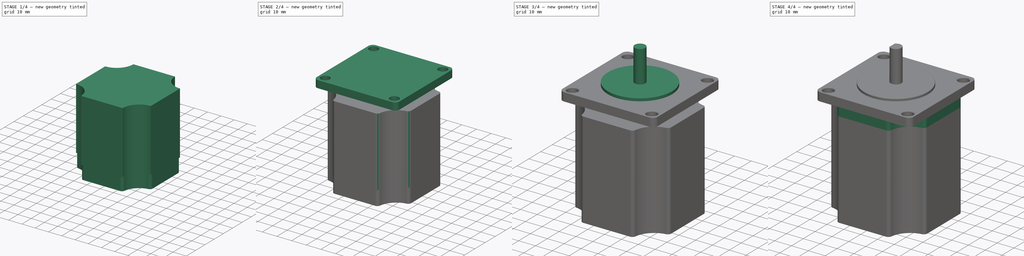
[diagram: build sequence overview — one tinted view per stage of 4, left to right]
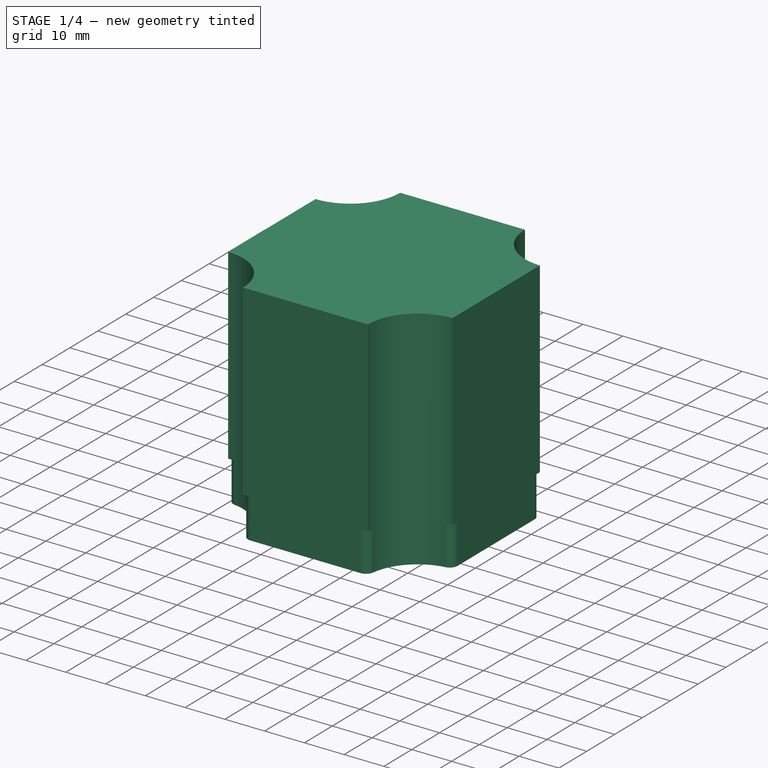
[diagram: stage 1 of 4 — iso view after this stage's code; geometry added in this stage tinted green]
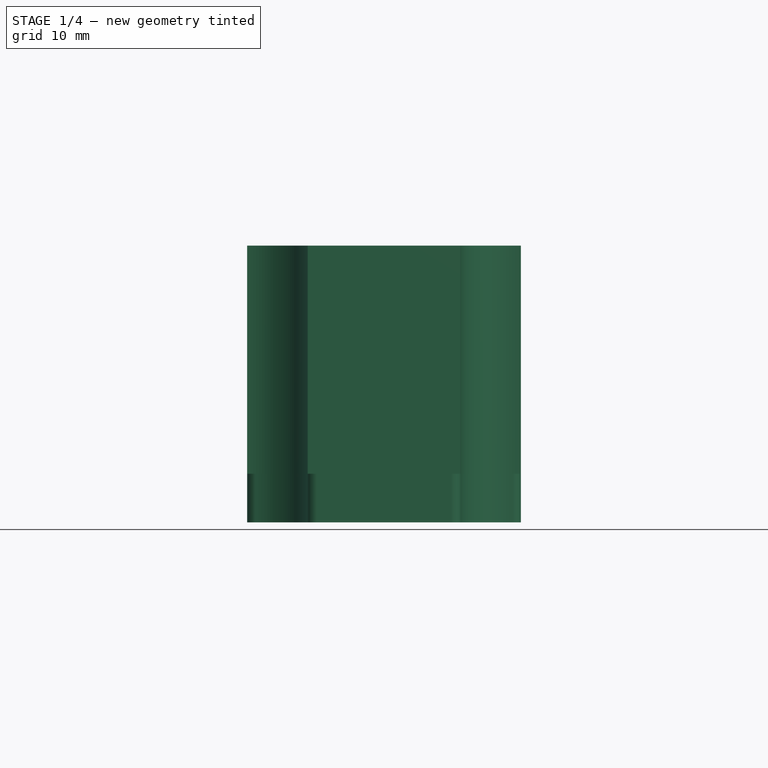
[diagram: stage 1 of 4 — front view after this stage's code; geometry added in this stage tinted green]
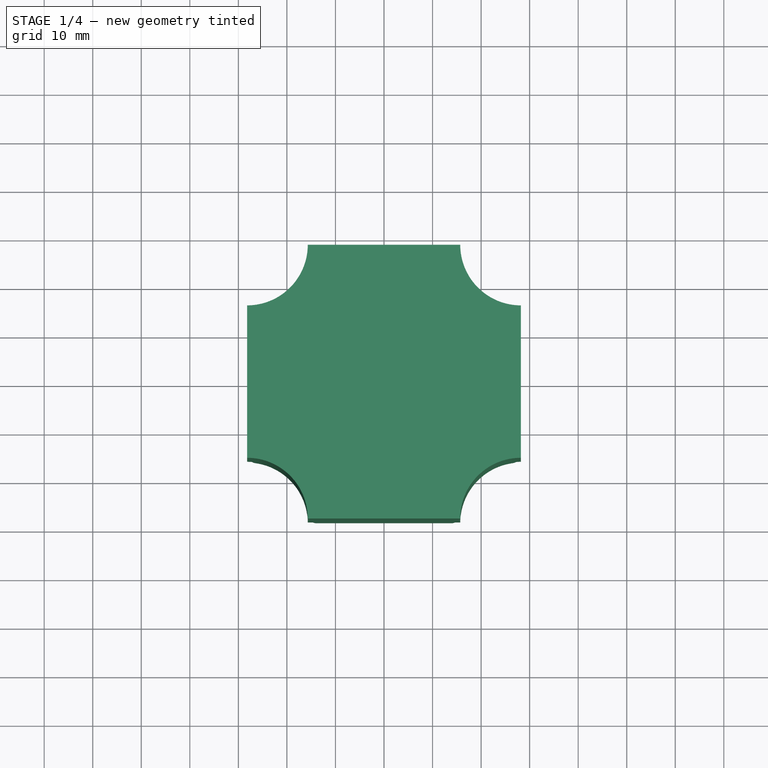
[diagram: stage 1 of 4 — top view after this stage's code; geometry added in this stage tinted green]
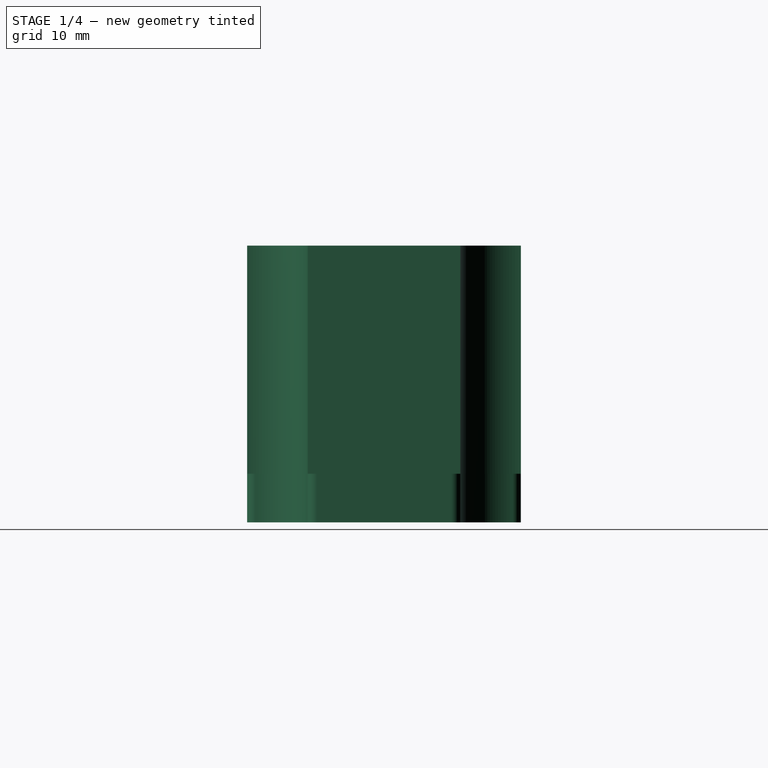
[diagram: stage 1 of 4 — right view after this stage's code; geometry added in this stage tinted green]
FCSTD DOCUMENT  (FreeCAD 1.0R39319 (Git))
Label: Nema23-Motor
License: All rights reserved
LicenseURL: http://en.wikipedia.org/wiki/All_rights_reserved
objects: Sketcher::SketchObject×7, PartDesign::Pad×6, PartDesign::Fillet×4, PartDesign::Body×3, PartDesign::Chamfer×1, PartDesign::Pocket×1
note: 53 computed .brp shape members not serialized (recipe doc carries the construction recipe); baked Part::Feature solids carry a one-line shape summary decoded from their .brp

FEATURE [PartDesign::Body] Body
  AllowCompound = false
  Group = -> [Sketch,Pad,Fillet,Chamfer,Sketch001,Pad001,Sketch002,Pad002,Sketch003,Pocket,Sketch004,Pad003,Fillet002]
  Origin = -> Origin
  Tip = -> Fillet002
FEATURE [Sketcher::SketchObject] Sketch005
  ArcFitTolerance = 0
  FullyConstrained = true
  MakeInternals = false
  MapMode = 5
  Placement = pos=(0,0,-5) rot=(1,0,0;3.14159rad)
  sketch-geometry (8):
    g0: LineSegment StartX=-28.2 StartY=15.7 StartZ=0 EndX=-28.2 EndY=-15.7 EndZ=0
    g1: LineSegment StartX=28.2 StartY=15.7 StartZ=0 EndX=28.2 EndY=-15.7 EndZ=0
    g2: LineSegment StartX=-15.7 StartY=28.2 StartZ=0 EndX=15.7 EndY=28.2 EndZ=0
    g3: LineSegment StartX=-15.7 StartY=-28.2 StartZ=0 EndX=15.7 EndY=-28.2 EndZ=0
    g4: ArcOfCircle CenterX=-28.2 CenterY=28.2 CenterZ=0 NormalX=0 NormalY=0 NormalZ=1 AngleXU=0 Radius=12.5 StartAngle=4.71239 EndAngle=6.28319
    g5: ArcOfCircle CenterX=28.2 CenterY=28.2 CenterZ=0 NormalX=0 NormalY=0 NormalZ=1 AngleXU=0 Radius=12.5 StartAngle=3.14159 EndAngle=4.71239
    g6: ArcOfCircle CenterX=28.2 CenterY=-28.2 CenterZ=0 NormalX=0 NormalY=0 NormalZ=1 AngleXU=0 Radius=12.5 StartAngle=1.5708 EndAngle=3.14159
    g7: ArcOfCircle CenterX=-28.2 CenterY=-28.2 CenterZ=0 NormalX=0 NormalY=0 NormalZ=1 AngleXU=0 Radius=12.5 StartAngle=1e-16 EndAngle=1.5708
  constraints (24):
    c: Symmetric(g0,g0,g-1)
    c: Vertical(g1)
    c: Horizontal(g3)
    c: Symmetric(g0,g1,g-2)
    c: Symmetric(g2,g2,g-2)
    c: Symmetric(g3,g2,g-1)
    c: Vertical(g3,g2)
    c: Horizontal(g1,g0)
    c: Coincident(g4,g2)
    c: Coincident(g4,g0)
    c: Coincident(g5,g2)
    c: Coincident(g5,g1)
    c: Coincident(g6,g1)
    c: Coincident(g6,g3)
    c: Coincident(g7,g0)
    c: Coincident(g7,g3)
    c: Vertical(g7,g0)
    c: Horizontal(g7,g3)
    c: Equal(g4,g7)
    c: Equal(g7,g5)
    c: Equal(g5,g6)
    c: DistanceX(g0,g1) = 56.4
    c: DistanceY(g3,g2) = 56.4
    c: Radius(g5) = 12.5
FEATURE [PartDesign::Pad] Pad004
  AllowMultiFace = false
  Direction = (0,-1e-16,-1)
  Length = 47
  Length2 = 100
  Placement = pos=(0,0,-5) rot=(1,0,0;3.14159rad)
  Profile = -> Sketch005
  Suppressed = false
  Type = 0
FEATURE [PartDesign::Body] Body001
  AllowCompound = false
  Group = -> [Sketch005,Pad004,Fillet003]
  Origin = -> Origin001
  Tip = -> Fillet003
FEATURE [Sketcher::SketchObject] Sketch006
  ArcFitTolerance = 0
  FullyConstrained = true
  MakeInternals = false
  MapMode = 5
  Placement = pos=(0,6e-15,-52) rot=(1,0,0;3.14159rad)
  sketch-geometry (8):
    g0: LineSegment StartX=-28.2 StartY=15.7 StartZ=0 EndX=-28.2 EndY=-15.7 EndZ=0
    g1: LineSegment StartX=-15.7 StartY=28.2 StartZ=0 EndX=15.7 EndY=28.2 EndZ=0
    g2: LineSegment StartX=28.2 StartY=15.7 StartZ=0 EndX=28.2 EndY=-15.7 EndZ=0
    g3: LineSegment StartX=-15.7 StartY=-28.2 StartZ=0 EndX=15.7 EndY=-28.2 EndZ=0
    g4: ArcOfCircle CenterX=28.2 CenterY=28.2 CenterZ=0 NormalX=0 NormalY=0 NormalZ=1 AngleXU=0 Radius=12.5 StartAngle=3.14159 EndAngle=4.71239
    g5: ArcOfCircle CenterX=28.2 CenterY=-28.2 CenterZ=0 NormalX=0 NormalY=0 NormalZ=1 AngleXU=0 Radius=12.5 StartAngle=1.5708 EndAngle=3.14159
    g6: ArcOfCircle CenterX=-28.2 CenterY=-28.2 CenterZ=0 NormalX=0 NormalY=0 NormalZ=1 AngleXU=0 Radius=12.5 StartAngle=0 EndAngle=1.5708
    g7: ArcOfCircle CenterX=-28.2 CenterY=28.2 CenterZ=0 NormalX=0 NormalY=0 NormalZ=1 AngleXU=0 Radius=12.5 StartAngle=4.71239 EndAngle=6.28319
  constraints (25):
    c: Vertical(g0)
    c: Horizontal(g1)
    c: Vertical(g2)
    c: Horizontal(g3)
    c: Coincident(g4,g2)
    c: Coincident(g5,g2)
    c: Coincident(g5,g3)
    c: Coincident(g6,g0)
    c: Coincident(g6,g3)
    c: Coincident(g7,g1)
    c: Coincident(g7,g0)
    c: Equal(g7,g4)
    c: Equal(g4,g5)
    c: Equal(g5,g6)
    c: Symmetric(g7,g4,g-2)
    c: Symmetric(g6,g5,g-2)
    c: Symmetric(g6,g7,g-1)
    c: Coincident(g1,g4)
    c: Radius(g7) = 12.5
    c: DistanceX(g7,g4) = 56.4
    c: DistanceY(g5,g4) = 56.4
    c: Vertical(g4,g2)
    c: Horizontal(g1,g4)
    c: Vertical(g0,g7)
    c: Horizontal(g3,g6)
FEATURE [PartDesign::Pad] Pad005
  AllowMultiFace = false
  Direction = (0,-1e-16,-1)
  Length = 10
  Length2 = 100
  Placement = pos=(0,6e-15,-52) rot=(1,0,0;3.14159rad)
  Profile = -> Sketch006
  Suppressed = false
  Type = 0
FEATURE [PartDesign::Fillet] Fillet004
  Base = -> Pad005 [Edge17,Edge20,Edge1,Edge14,Edge11,Edge8,Edge5,Edge2]
  BaseFeature = -> Pad005
  Placement = pos=(0,6e-15,-52) rot=(1,0,0;3.14159rad)
  Radius = 2
  Refine = true
  SupportTransform = false
  Suppressed = false
  UseAllEdges = false
FEATURE [PartDesign::Body] Body002
  AllowCompound = false
  Group = -> [Sketch006,Pad005,Fillet004]
  Origin = -> Origin002
  Tip = -> Fillet004
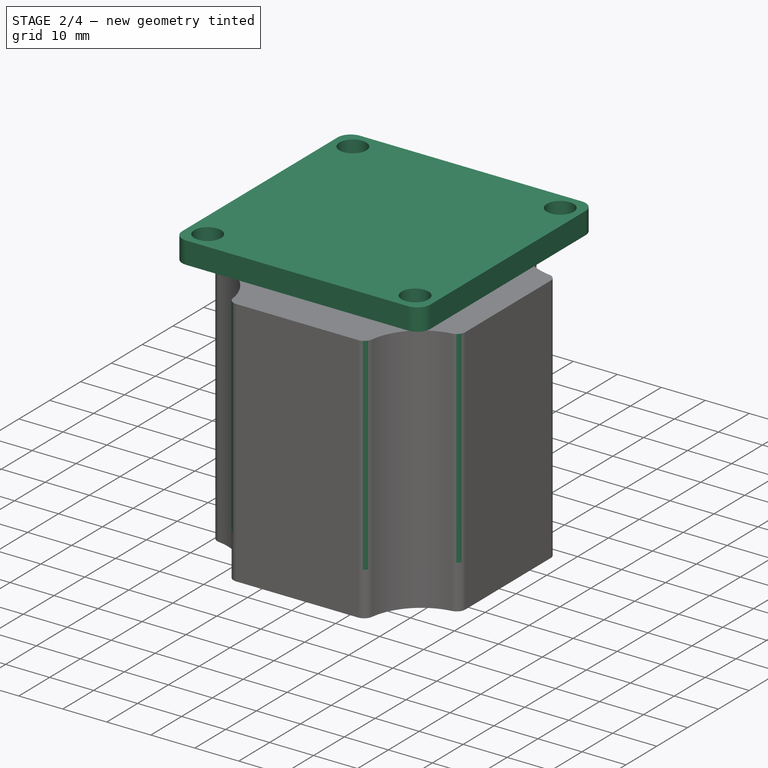
[diagram: stage 2 of 4 — iso view after this stage's code; geometry added in this stage tinted green]
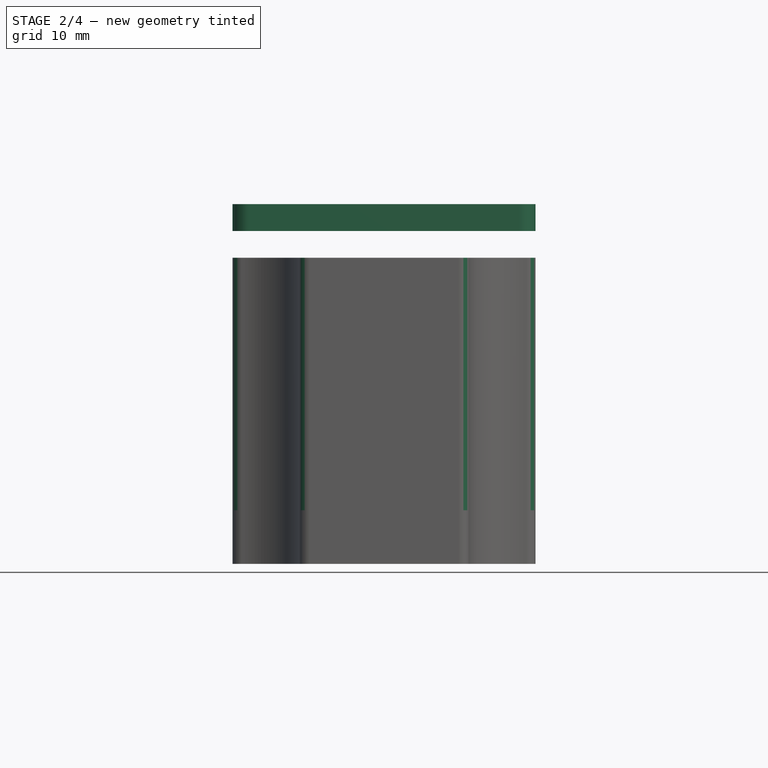
[diagram: stage 2 of 4 — front view after this stage's code; geometry added in this stage tinted green]
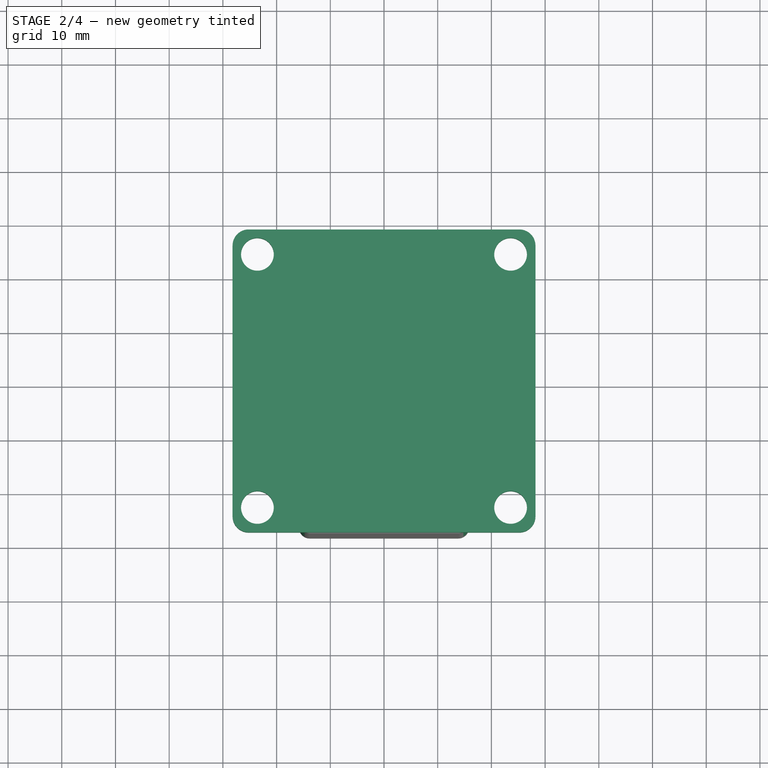
[diagram: stage 2 of 4 — top view after this stage's code; geometry added in this stage tinted green]
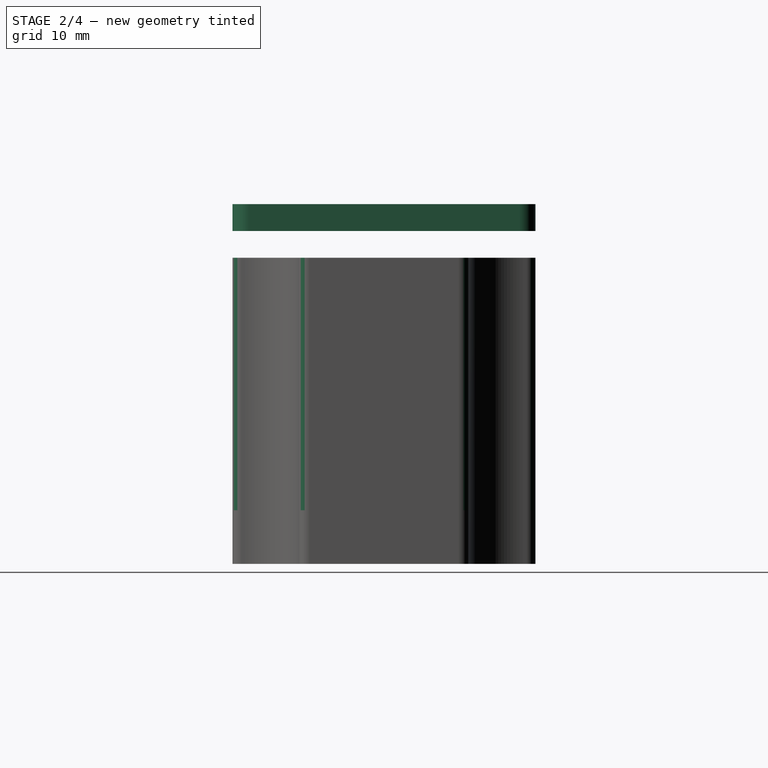
[diagram: stage 2 of 4 — right view after this stage's code; geometry added in this stage tinted green]
FEATURE [Sketcher::SketchObject] Sketch
  ArcFitTolerance = 0
  AttachmentSupport = -> [XY_Plane]
  FullyConstrained = true
  MakeInternals = false
  MapMode = 5
  sketch-geometry (8):
    g0: LineSegment StartX=-28.2 StartY=28.2 StartZ=0 EndX=28.2 EndY=28.2 EndZ=0
    g1: LineSegment StartX=28.2 StartY=28.2 StartZ=0 EndX=28.2 EndY=-28.2 EndZ=0
    g2: LineSegment StartX=28.2 StartY=-28.2 StartZ=0 EndX=-28.2 EndY=-28.2 EndZ=0
    g3: LineSegment StartX=-28.2 StartY=-28.2 StartZ=0 EndX=-28.2 EndY=28.2 EndZ=0
    g4: Circle CenterX=-23.57 CenterY=23.57 CenterZ=0 NormalX=0 NormalY=0 NormalZ=1 AngleXU=0 Radius=3.05
    g5: Circle CenterX=23.57 CenterY=23.57 CenterZ=0 NormalX=0 NormalY=0 NormalZ=1 AngleXU=0 Radius=3.05
    g6: Circle CenterX=23.57 CenterY=-23.57 CenterZ=0 NormalX=0 NormalY=0 NormalZ=1 AngleXU=0 Radius=3.05
    g7: Circle CenterX=-23.57 CenterY=-23.57 CenterZ=0 NormalX=0 NormalY=0 NormalZ=1 AngleXU=0 Radius=3.05
  constraints (21):
    c: Coincident(g0,g1)
    c: Coincident(g1,g2)
    c: Coincident(g2,g3)
    c: Coincident(g3,g0)
    c: Horizontal(g0)
    c: Horizontal(g2)
    c: Vertical(g1)
    c: Vertical(g3)
    c: Symmetric(g0,g1,g-1)
    c: DistanceX(g0,g0) = 56.4
    c: DistanceY(g1,g1) = 56.4
    c: Symmetric(g4,g5,g-2)
    c: Symmetric(g5,g6,g-1)
    c: Vertical(g7,g4)
    c: Horizontal(g7,g6)
    c: Equal(g4,g5)
    c: Equal(g5,g6)
    c: Equal(g6,g7)
    c: Diameter(g5) = 6.1
    c: DistanceX(g4,g5) = 47.14
    c: DistanceY(g6,g5) = 47.14
FEATURE [PartDesign::Pad] Pad
  AllowMultiFace = false
  Direction = (0,0,1)
  Length = 5
  Length2 = 100
  Profile = -> Sketch
  Suppressed = false
  Type = 0
FEATURE [PartDesign::Fillet] Fillet
  Base = -> Pad [Edge2,Edge1,Edge8,Edge5]
  BaseFeature = -> Pad
  Radius = 3
  Refine = true
  SupportTransform = false
  Suppressed = false
  UseAllEdges = false
FEATURE [PartDesign::Fillet] Fillet003
  Base = -> Pad004 [Edge1,Edge5,Edge8,Edge11,Edge14,Edge17,Edge20,Edge2]
  BaseFeature = -> Pad004
  Placement = pos=(0,0,-5) rot=(1,0,0;3.14159rad)
  Radius = 2
  Refine = true
  SupportTransform = false
  Suppressed = false
  UseAllEdges = false
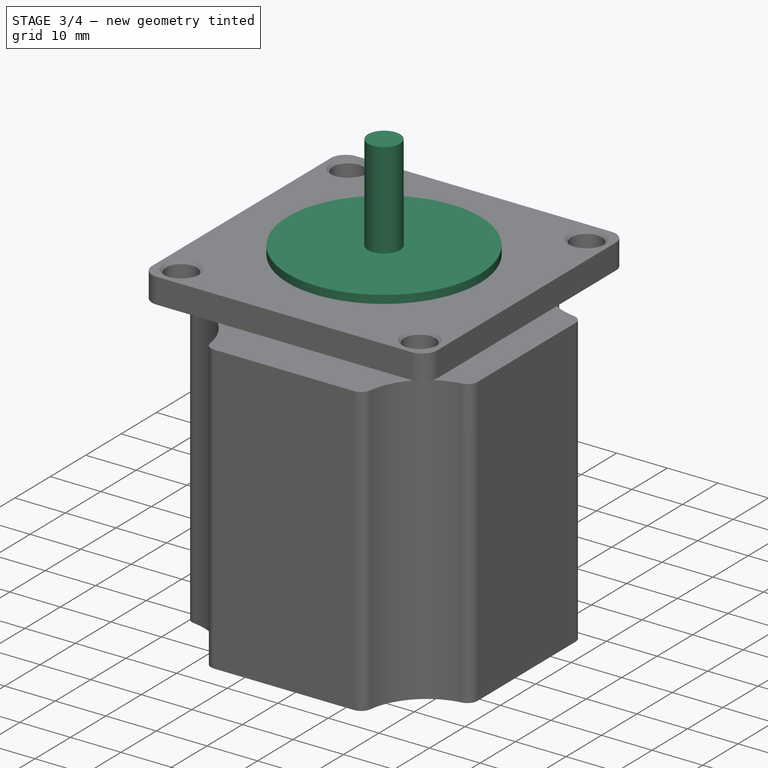
[diagram: stage 3 of 4 — iso view after this stage's code; geometry added in this stage tinted green]
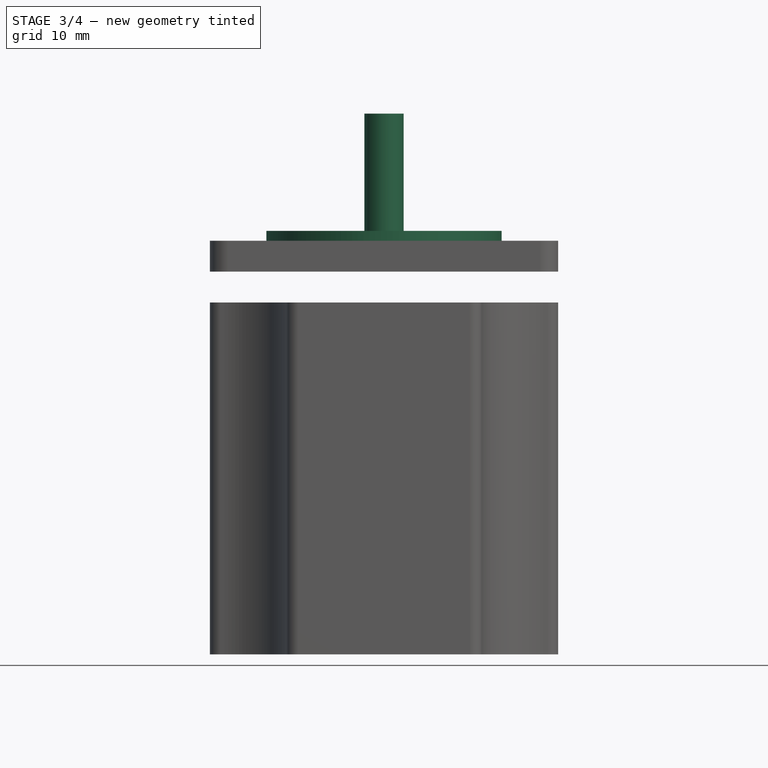
[diagram: stage 3 of 4 — front view after this stage's code; geometry added in this stage tinted green]
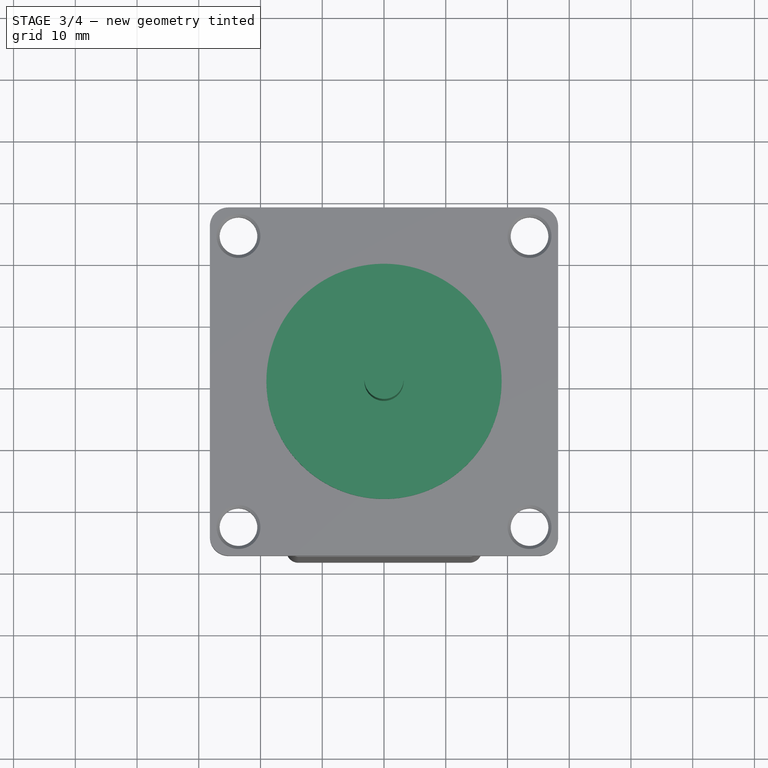
[diagram: stage 3 of 4 — top view after this stage's code; geometry added in this stage tinted green]
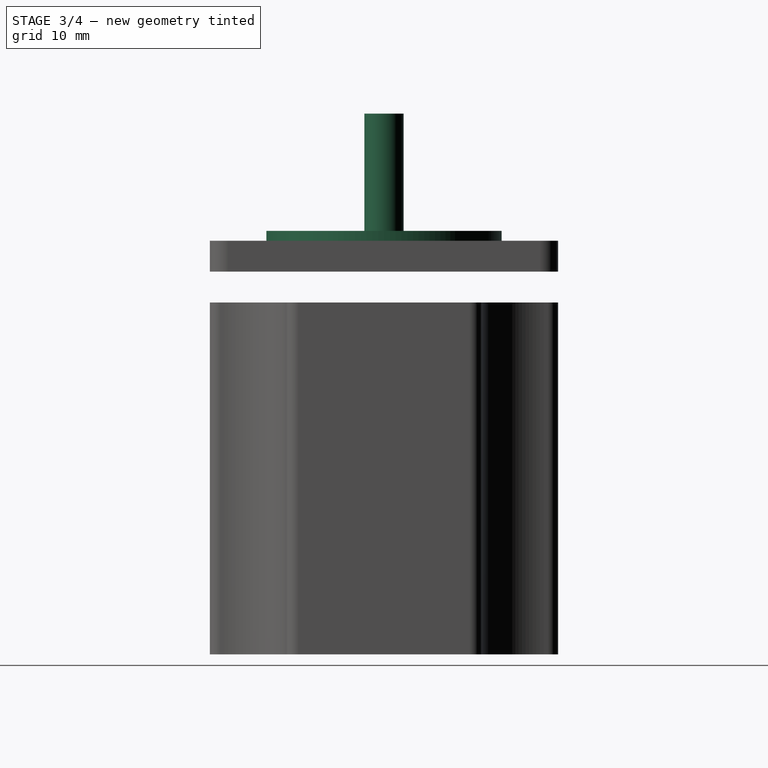
[diagram: stage 3 of 4 — right view after this stage's code; geometry added in this stage tinted green]
FEATURE [PartDesign::Chamfer] Chamfer
  Angle = 45
  Base = -> Fillet [Edge28,Edge15,Edge27,Edge14,Edge26,Edge13,Edge25,Edge12]
  BaseFeature = -> Fillet
  ChamferType = 0
  FlipDirection = false
  Refine = true
  Size = 0.5
  Size2 = 1
  SupportTransform = false
  Suppressed = false
  UseAllEdges = false
FEATURE [Sketcher::SketchObject] Sketch001
  ArcFitTolerance = 0
  AttachmentSupport = -> [Chamfer]
  FullyConstrained = true
  MakeInternals = false
  MapMode = 5
  Placement = pos=(0,0,5) rot=(0,0,1;0rad)
  sketch-geometry (1):
    g0: Circle CenterX=0 CenterY=0 CenterZ=0 NormalX=0 NormalY=0 NormalZ=1 AngleXU=0 Radius=19.05
  constraints (2):
    c: Coincident(g0,g-1)
    c: Diameter(g0) = 38.1
FEATURE [PartDesign::Pad] Pad001
  AllowMultiFace = false
  BaseFeature = -> Chamfer
  Direction = (0,0,1)
  Length = 1.6
  Length2 = 100
  Profile = -> Sketch001
  Suppressed = false
  Type = 0
FEATURE [Sketcher::SketchObject] Sketch002
  ArcFitTolerance = 0
  FullyConstrained = true
  MakeInternals = false
  MapMode = 5
  Placement = pos=(0,0,6.6) rot=(0,0,1;0rad)
  sketch-geometry (1):
    g0: Circle CenterX=0 CenterY=0 CenterZ=0 NormalX=0 NormalY=0 NormalZ=1 AngleXU=0 Radius=3.175
  constraints (2):
    c: Coincident(g0,g-1)
    c: Diameter(g0) = 6.35
FEATURE [PartDesign::Pad] Pad002
  AllowMultiFace = false
  BaseFeature = -> Pad001
  Direction = (0,0,1)
  Length = 19
  Length2 = 100
  Profile = -> Sketch002
  Suppressed = false
  Type = 0
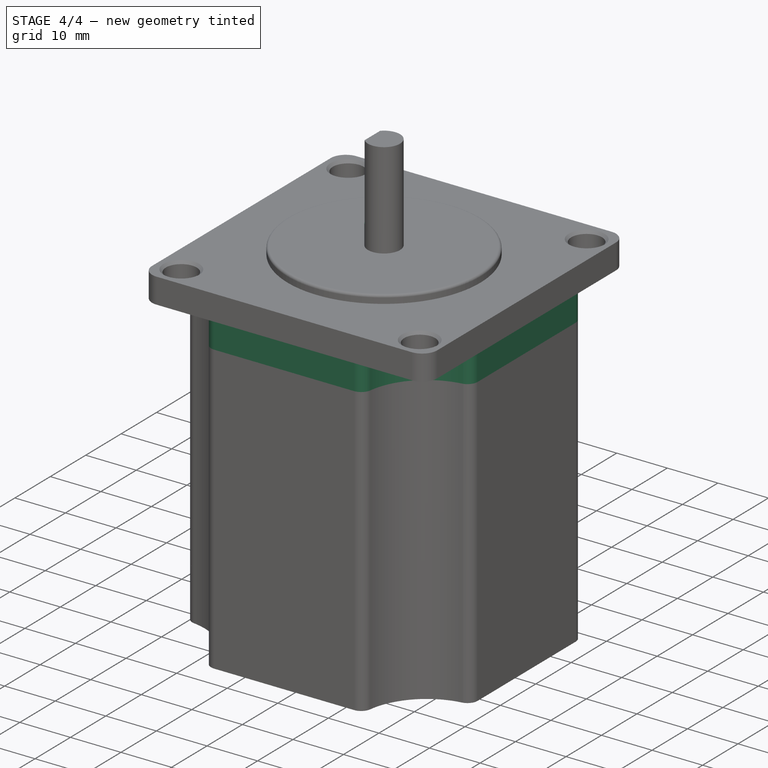
[diagram: stage 4 of 4 — iso view after this stage's code; geometry added in this stage tinted green]
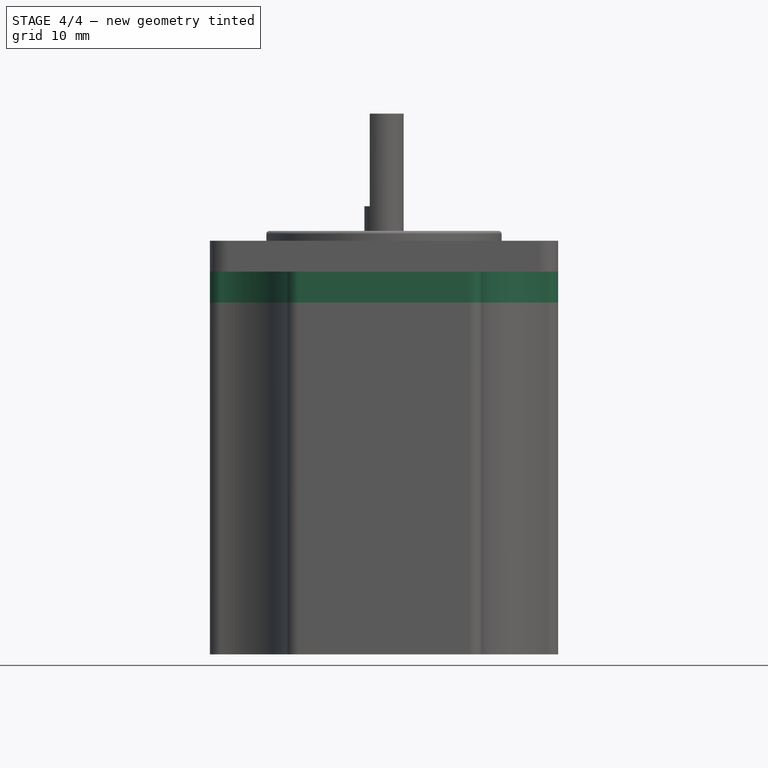
[diagram: stage 4 of 4 — front view after this stage's code; geometry added in this stage tinted green]
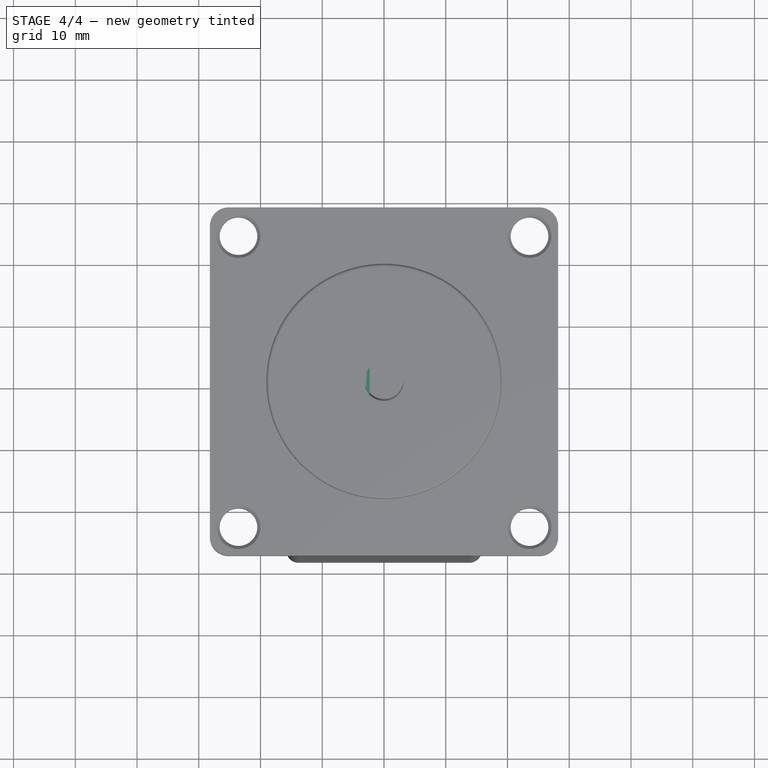
[diagram: stage 4 of 4 — top view after this stage's code; geometry added in this stage tinted green]
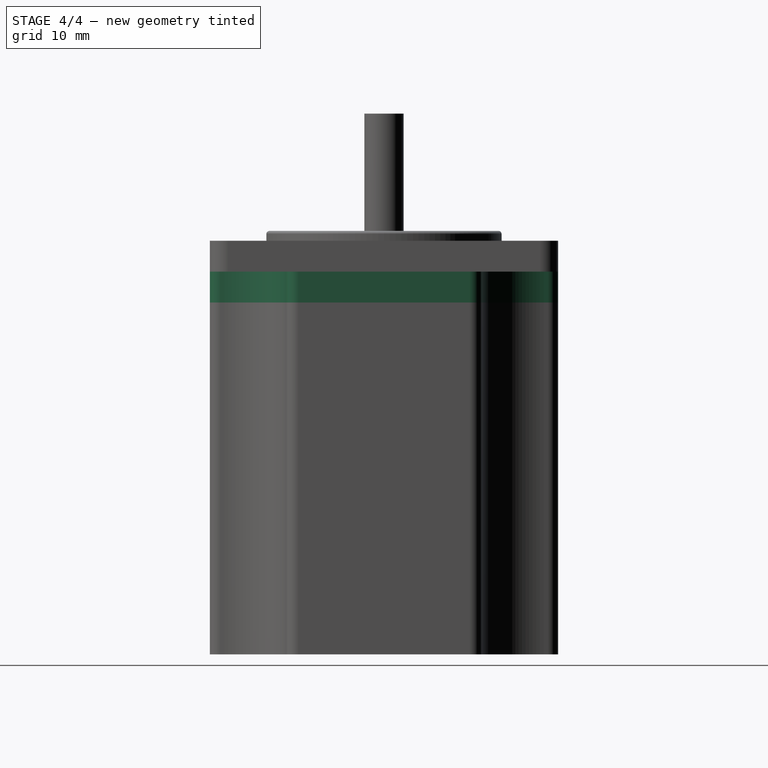
[diagram: stage 4 of 4 — right view after this stage's code; geometry added in this stage tinted green]
FEATURE [Sketcher::SketchObject] Sketch003
  ArcFitTolerance = 0
  AttachmentSupport = -> [Pad002]
  FullyConstrained = true
  MakeInternals = false
  MapMode = 5
  Placement = pos=(0,0,25.6) rot=(0,0,1;0rad)
  sketch-geometry (4):
    g0: LineSegment StartX=-7.01 StartY=3.76 StartZ=0 EndX=-2.3 EndY=3.76 EndZ=0
    g1: LineSegment StartX=-2.3 StartY=3.76 StartZ=0 EndX=-2.3 EndY=-3.76 EndZ=0
    g2: LineSegment StartX=-2.3 StartY=-3.76 StartZ=0 EndX=-7.01 EndY=-3.76 EndZ=0
    g3: LineSegment StartX=-7.01 StartY=-3.76 StartZ=0 EndX=-7.01 EndY=3.76 EndZ=0
  constraints (11):
    c: Coincident(g0,g1)
    c: Coincident(g1,g2)
    c: Coincident(g2,g3)
    c: Coincident(g3,g0)
    c: Horizontal(g0)
    c: Horizontal(g2)
    c: Vertical(g3)
    c: Symmetric(g0,g1,g-1)
    c: DistanceY(g3,g3) = 7.52
    c: DistanceX(g0,g0) = 4.71
    c: DistanceX(g0,g-1) = 2.3
FEATURE [PartDesign::Pocket] Pocket
  AllowMultiFace = false
  BaseFeature = -> Pad002
  Direction = (1,1,1)
  Length = 15
  Length2 = 100
  Profile = -> Sketch003
  Suppressed = false
  Type = 0
FEATURE [Sketcher::SketchObject] Sketch004
  ArcFitTolerance = 0
  AttachmentSupport = -> [Pocket]
  FullyConstrained = false
  MakeInternals = false
  MapMode = 5
  Placement = pos=(0,0,0) rot=(1,0,0;3.14159rad)
  sketch-geometry (8):
    g0: LineSegment StartX=-28.2 StartY=15.7 StartZ=0 EndX=-28.2 EndY=-15.7 EndZ=0
    g1: LineSegment StartX=28.2 StartY=15.7 StartZ=0 EndX=28.2 EndY=-15.7 EndZ=0
    g2: LineSegment StartX=-15.7 StartY=28.2 StartZ=0 EndX=15.7 EndY=28.2 EndZ=0
    g3: LineSegment StartX=15.7 StartY=-28.2 StartZ=0 EndX=-15.7 EndY=-28.2 EndZ=0
    g4: ArcOfCircle CenterX=28.2 CenterY=28.2 CenterZ=0 NormalX=0 NormalY=0 NormalZ=1 AngleXU=0 Radius=12.5 StartAngle=3.14159 EndAngle=4.71239
    g5: ArcOfCircle CenterX=-28.2 CenterY=28.2 CenterZ=0 NormalX=0 NormalY=0 NormalZ=1 AngleXU=0 Radius=12.5 StartAngle=4.71239 EndAngle=6.28319
    g6: ArcOfCircle CenterX=-28.2 CenterY=-28.2 CenterZ=0 NormalX=0 NormalY=0 NormalZ=1 AngleXU=0 Radius=12.5 StartAngle=0 EndAngle=1.5708
    g7: ArcOfCircle CenterX=28.2 CenterY=-28.2 CenterZ=0 NormalX=0 NormalY=0 NormalZ=1 AngleXU=0 Radius=12.5 StartAngle=1.5708 EndAngle=3.14159
  constraints (24):
    c: Vertical(g0)
    c: Horizontal(g2)
    c: Symmetric(g3,g3,g-2)
    c: Symmetric(g3,g2,g-1)
    c: Equal(g2,g3)
    c: Symmetric(g1,g1,g-1)
    c: Symmetric(g1,g0,g-2)
    c: Equal(g0,g1)
    c: Coincident(g4,g2)
    c: Coincident(g4,g1)
    c: Coincident(g5,g2)
    c: Coincident(g5,g0)
    c: Coincident(g6,g0)
    c: Coincident(g6,g3)
    c: Coincident(g7,g1)
    c: Coincident(g7,g3)
    c: Horizontal(g6,g3)
    c: Horizontal(g7,g3)
    c: Horizontal(g4,g2)
    c: Horizontal(g2,g5)
    c: Vertical(g5,g0)
    c: DistanceX(g0,g1) = 56.4
    c: DistanceY(g3,g2) = 56.4
    c: Radius(g5) = 12.5
FEATURE [PartDesign::Pad] Pad003
  AllowMultiFace = false
  BaseFeature = -> Pocket
  Direction = (1,1,1)
  Length = 5
  Length2 = 100
  Profile = -> Sketch004
  Suppressed = false
  Type = 0
FEATURE [PartDesign::Fillet] Fillet002
  Base = -> Pad003 [Edge67,Edge60,Edge59,Edge70,Edge69,Edge75,Edge74,Edge66]
  BaseFeature = -> Pad003
  Radius = 2
  Refine = true
  SupportTransform = false
  Suppressed = false
  UseAllEdges = false
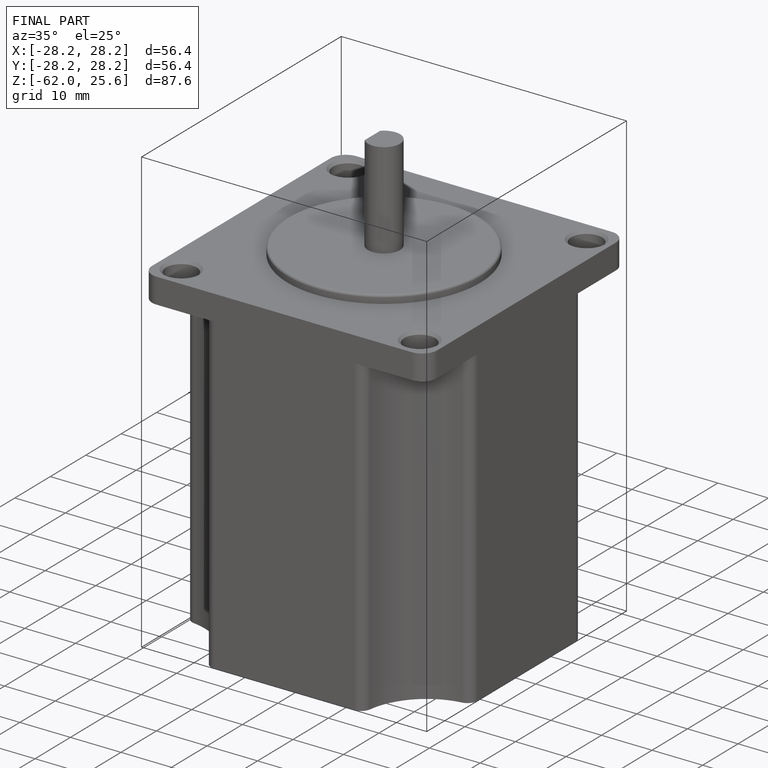
[diagram: finished part — iso view with bounding-box wireframe]
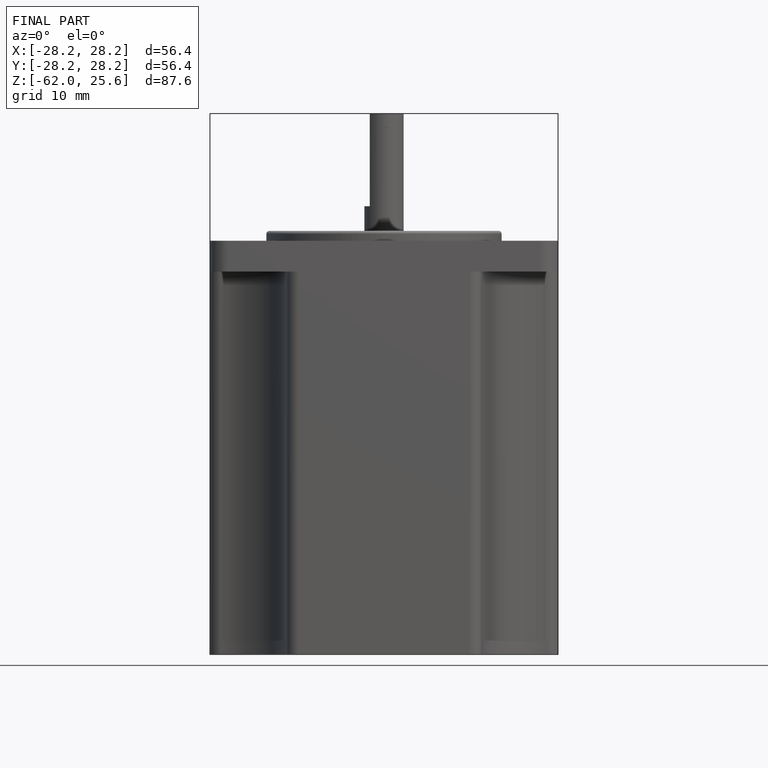
[diagram: finished part — front view with bounding-box wireframe]
